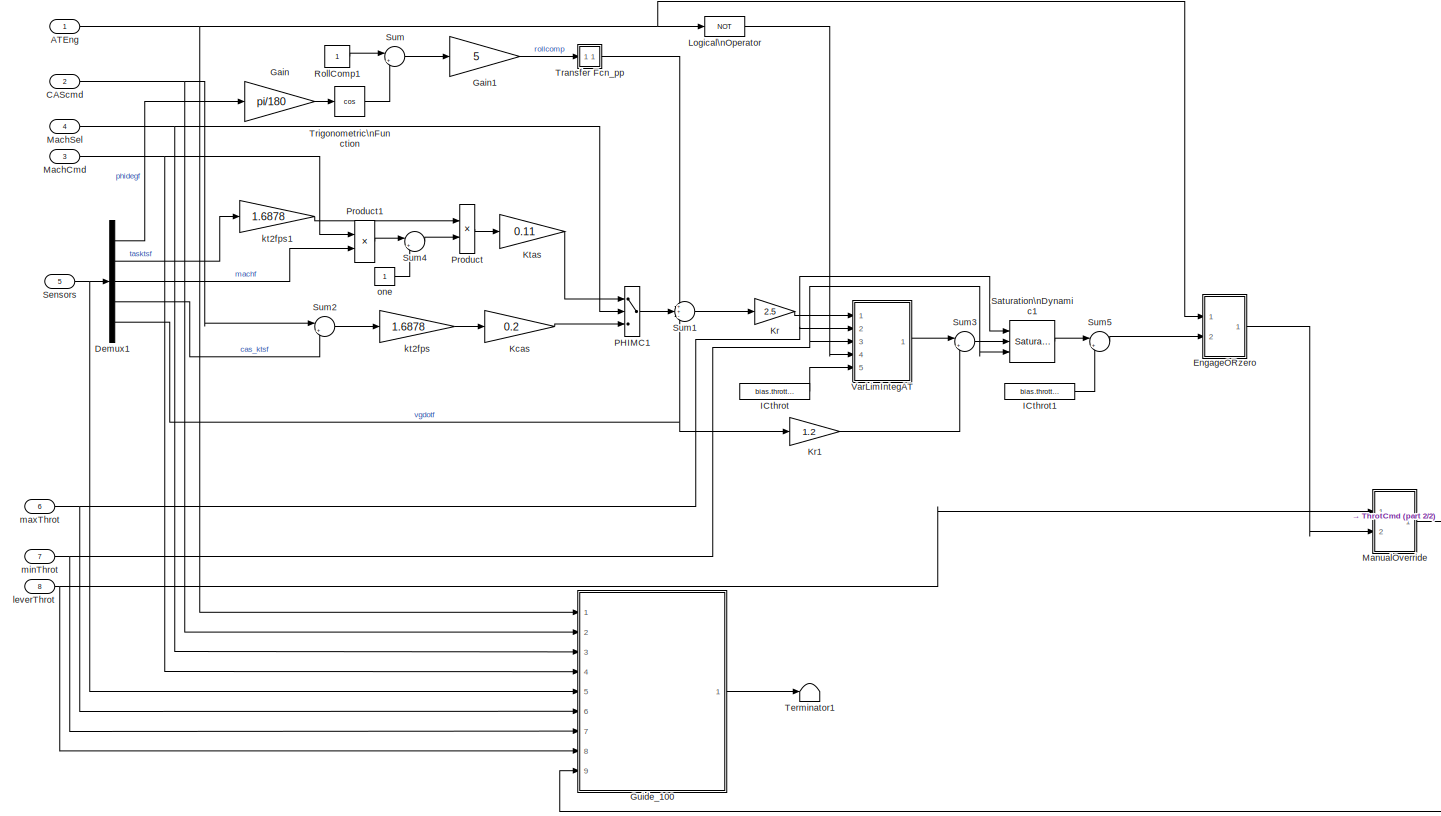
[diagram: root canvas - part 1/2, most of the canvas]
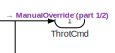
[diagram: root canvas - part 2/2, middle right region]
MODEL AutoThrottle_Guide_100
KIND model
BLOCK [Inport] ATEng
  IconDisplay = Port number
  SID = 1
BLOCK [Inport] CAScmd
  IconDisplay = Port number
  Port = 2
  SID = 2
BLOCK [Demux] Demux1
  DisplayOption = bar
  Outputs = 5
  Ports = [1, 5]
  SID = 9
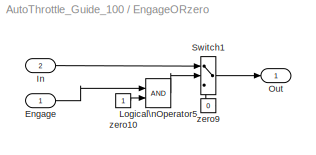
BLOCK [SubSystem] EngageORzero
  Ports = [2, 1]
  RequestExecContextInheritance = off
  SID = 10
  Variant = off
BLOCK [Inport] EngageORzero/Engage
  IconDisplay = Port number
  SID = 11
BLOCK [Inport] EngageORzero/In
  IconDisplay = Port number
  Port = 2
  SID = 12
BLOCK [Logic] EngageORzero/Logical\nOperator5
  AllPortsSameDT = off
  OutDataTypeStr = boolean
  Ports = [2, 1]
  SID = 13
BLOCK [Outport] EngageORzero/Out
  IconDisplay = Port number
  SID = 17
BLOCK [Switch] EngageORzero/Switch1
  InputSameDT = off
  SID = 14
  SaturateOnIntegerOverflow = off
  Threshold = 0.5
BLOCK [Constant] EngageORzero/zero10
  SID = 15
BLOCK [Constant] EngageORzero/zero9
  SID = 16
  Value = 0
BLOCK [Gain] Gain
  Gain = pi/180
  OutDataTypeStr = Inherit: Inherit via internal rule
  ParamDataTypeStr = Inherit: Inherit via internal rule
  SID = 18
  SaturateOnIntegerOverflow = off
BLOCK [Gain] Gain1
  Gain = 5
  OutDataTypeStr = Inherit: Inherit via internal rule
  ParamDataTypeStr = Inherit: Inherit via internal rule
  SID = 19
  SaturateOnIntegerOverflow = off
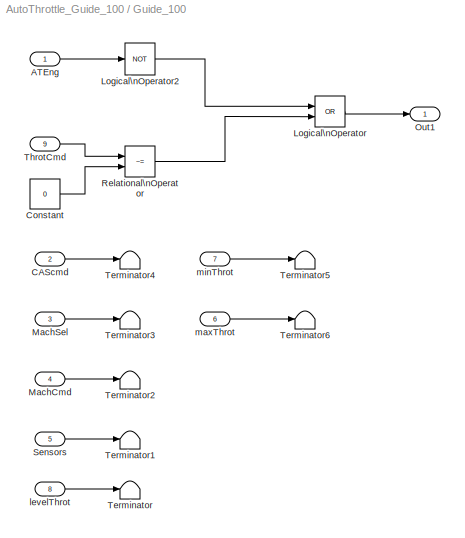
BLOCK [SubSystem] Guide_100
  Ports = [9, 1]
  RequestExecContextInheritance = off
  SID = 20
  TreatAsAtomicUnit = on
  Variant = off
BLOCK [Inport] Guide_100/ATEng
  IconDisplay = Port number
  SID = 21
BLOCK [Inport] Guide_100/CAScmd
  IconDisplay = Port number
  Port = 2
  SID = 22
BLOCK [Constant] Guide_100/Constant
  SID = 30
  Value = 0
BLOCK [Logic] Guide_100/Logical\nOperator
  AllPortsSameDT = off
  Operator = OR
  OutDataTypeStr = boolean
  Ports = [2, 1]
  SID = 31
BLOCK [Logic] Guide_100/Logical\nOperator2
  AllPortsSameDT = off
  Operator = NOT
  OutDataTypeStr = boolean
  Ports = [1, 1]
  SID = 32
BLOCK [Inport] Guide_100/MachCmd
  IconDisplay = Port number
  Port = 4
  SID = 24
BLOCK [Inport] Guide_100/MachSel
  IconDisplay = Port number
  Port = 3
  SID = 23
BLOCK [Outport] Guide_100/Out1
  IconDisplay = Port number
  SID = 41
BLOCK [RelationalOperator] Guide_100/Relational\nOperator
  InputSameDT = off
  Operator = ~=
  OutDataTypeStr = boolean
  Ports = [2, 1]
  SID = 33
BLOCK [Inport] Guide_100/Sensors
  IconDisplay = Port number
  Port = 5
  SID = 25
BLOCK [Terminator] Guide_100/Terminator
  SID = 34
BLOCK [Terminator] Guide_100/Terminator1
  SID = 35
BLOCK [Terminator] Guide_100/Terminator2
  SID = 36
BLOCK [Terminator] Guide_100/Terminator3
  SID = 37
BLOCK [Terminator] Guide_100/Terminator4
  SID = 38
BLOCK [Terminator] Guide_100/Terminator5
  SID = 39
BLOCK [Terminator] Guide_100/Terminator6
  SID = 40
BLOCK [Inport] Guide_100/ThrotCmd
  IconDisplay = Port number
  Port = 9
  SID = 29
BLOCK [Inport] Guide_100/levelThrot
  IconDisplay = Port number
  Port = 8
  SID = 28
BLOCK [Inport] Guide_100/maxThrot
  IconDisplay = Port number
  Port = 6
  SID = 26
BLOCK [Inport] Guide_100/minThrot
  IconDisplay = Port number
  Port = 7
  SID = 27
BLOCK [Constant] ICthrot
  SID = 42
  SampleTime = -1
  Value = bias.throttle
BLOCK [Constant] ICthrot1
  SID = 43
  SampleTime = -1
  Value = bias.throttle
BLOCK [Gain] Kcas
  Gain = 0.2
  OutDataTypeStr = Inherit: Inherit via internal rule
  ParamDataTypeStr = Inherit: Inherit via internal rule
  SID = 44
  SaturateOnIntegerOverflow = off
BLOCK [Gain] Kr
  Gain = 2.5
  OutDataTypeStr = Inherit: Inherit via internal rule
  ParamDataTypeStr = Inherit: Inherit via internal rule
  SID = 45
  SaturateOnIntegerOverflow = off
BLOCK [Gain] Kr1
  Gain = 1.2
  OutDataTypeStr = Inherit: Inherit via internal rule
  ParamDataTypeStr = Inherit: Inherit via internal rule
  SID = 46
  SaturateOnIntegerOverflow = off
BLOCK [Gain] Ktas
  Gain = 0.11
  OutDataTypeStr = Inherit: Inherit via internal rule
  ParamDataTypeStr = Inherit: Inherit via internal rule
  SID = 47
  SaturateOnIntegerOverflow = off
BLOCK [Logic] Logical\nOperator
  AllPortsSameDT = off
  Operator = NOT
  OutDataTypeStr = boolean
  Ports = [1, 1]
  SID = 48
BLOCK [Inport] MachCmd
  IconDisplay = Port number
  Port = 3
  SID = 3
BLOCK [Inport] MachSel
  IconDisplay = Port number
  Port = 4
  SID = 4
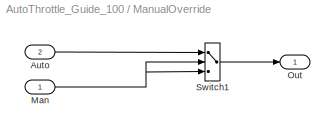
BLOCK [SubSystem] ManualOverride
  Ports = [2, 1]
  RequestExecContextInheritance = off
  SID = 49
  Variant = off
BLOCK [Inport] ManualOverride/Auto
  IconDisplay = Port number
  Port = 2
  SID = 51
BLOCK [Inport] ManualOverride/Man
  IconDisplay = Port number
  SID = 50
BLOCK [Outport] ManualOverride/Out
  IconDisplay = Port number
  SID = 53
BLOCK [Switch] ManualOverride/Switch1
  Criteria = u2 ~= 0
  InputSameDT = off
  SID = 52
  SaturateOnIntegerOverflow = off
  Threshold = 0.5
BLOCK [Switch] PHIMC1
  InputSameDT = off
  SID = 54
  Threshold = 0.5
BLOCK [Product] Product
  InputSameDT = off
  OutDataTypeStr = Inherit: Inherit via internal rule
  Ports = [2, 1]
  SID = 55
  SaturateOnIntegerOverflow = off
BLOCK [Product] Product1
  InputSameDT = off
  Inputs = */
  OutDataTypeStr = Inherit: Inherit via internal rule
  Ports = [2, 1]
  SID = 56
  SaturateOnIntegerOverflow = off
BLOCK [Constant] RollComp1
  SID = 57
  SampleTime = -1
BLOCK [Reference] Saturation\nDynamic1  REF=simulink/Discontinuities/Saturation\nDynamic
  DoSatur = off
  LockScale = off
  OutDataType = sfix(16)
  OutDataTypeStr = Inherit: Same as second input
  OutMax = []
  OutMin = []
  OutScaling = 2^-10
  OutputDataTypeScalingMode = Same as second input
  Ports = [3, 1]
  RndMeth = Floor
  SID = 58
  SourceBlock = simulink/Discontinuities/Saturation\nDynamic
  SourceType = Saturation Dynamic
BLOCK [Inport] Sensors
  IconDisplay = Port number
  Port = 5
  SID = 5
BLOCK [Sum] Sum
  IconShape = round
  InputSameDT = off
  Inputs = |+-
  OutDataTypeStr = Inherit: Inherit via internal rule
  Ports = [2, 1]
  SID = 59
  SaturateOnIntegerOverflow = off
BLOCK [Sum] Sum1
  IconShape = round
  InputSameDT = off
  Inputs = ++-
  OutDataTypeStr = Inherit: Inherit via internal rule
  Ports = [3, 1]
  SID = 60
  SaturateOnIntegerOverflow = off
BLOCK [Sum] Sum2
  IconShape = round
  InputSameDT = off
  Inputs = |+-
  OutDataTypeStr = Inherit: Inherit via internal rule
  Ports = [2, 1]
  SID = 61
  SaturateOnIntegerOverflow = off
BLOCK [Sum] Sum3
  IconShape = round
  InputSameDT = off
  Inputs = |+-
  OutDataTypeStr = Inherit: Inherit via internal rule
  Ports = [2, 1]
  SID = 62
  SaturateOnIntegerOverflow = off
BLOCK [Sum] Sum4
  IconShape = round
  InputSameDT = off
  Inputs = |+-
  OutDataTypeStr = Inherit: Inherit via internal rule
  Ports = [2, 1]
  SID = 63
  SaturateOnIntegerOverflow = off
BLOCK [Sum] Sum5
  IconShape = round
  InputSameDT = off
  Inputs = |+-
  OutDataTypeStr = Inherit: Inherit via internal rule
  Ports = [2, 1]
  SID = 64
  SaturateOnIntegerOverflow = off
BLOCK [Terminator] Terminator1
  SID = 65
BLOCK [Outport] ThrotCmd
  IconDisplay = Port number
  SID = 99
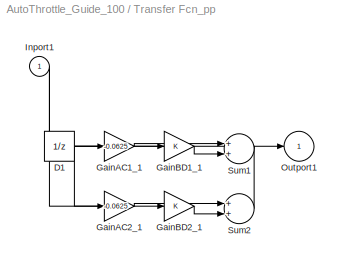
BLOCK [SubSystem] Transfer Fcn_pp
  Ports = [1, 1]
  RequestExecContextInheritance = off
  SID = 66
  TreatAsAtomicUnit = on
  Variant = off
BLOCK [UnitDelay] Transfer Fcn_pp/D1
  SID = 68
  SampleTime = -1
BLOCK [Gain] Transfer Fcn_pp/GainAC1_1
  Gain = -0.0625
  SID = 69
BLOCK [Gain] Transfer Fcn_pp/GainAC2_1
  Gain = -0.0625
  SID = 70
BLOCK [Gain] Transfer Fcn_pp/GainBD1_1
  SID = 71
BLOCK [Gain] Transfer Fcn_pp/GainBD2_1
  SID = 72
BLOCK [Inport] Transfer Fcn_pp/Inport1
  IconDisplay = Port number
  SID = 67
BLOCK [Outport] Transfer Fcn_pp/Outport1
  IconDisplay = Port number
  SID = 75
BLOCK [Sum] Transfer Fcn_pp/Sum1
  Ports = [2, 1]
  SID = 73
BLOCK [Sum] Transfer Fcn_pp/Sum2
  Ports = [2, 1]
  SID = 74
BLOCK [Trigonometry] Trigonometric\nFunction
  Operator = cos
  Ports = [1, 1]
  SID = 76
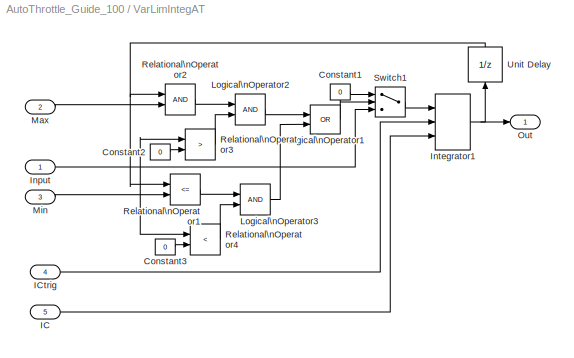
BLOCK [SubSystem] VarLimIntegAT
  Ports = [5, 1]
  RequestExecContextInheritance = off
  SID = 77
  TreatAsAtomicUnit = on
  Variant = off
BLOCK [Constant] VarLimIntegAT/Constant1
  SID = 83
  SampleTime = -1
  Value = 0
BLOCK [Constant] VarLimIntegAT/Constant2
  SID = 84
  SampleTime = -1
  Value = 0
BLOCK [Constant] VarLimIntegAT/Constant3
  SID = 85
  SampleTime = -1
  Value = 0
BLOCK [Inport] VarLimIntegAT/IC
  IconDisplay = Port number
  Port = 5
  SID = 82
BLOCK [Inport] VarLimIntegAT/ICtrig
  IconDisplay = Port number
  Port = 4
  SID = 81
BLOCK [Inport] VarLimIntegAT/Input
  IconDisplay = Port number
  SID = 78
BLOCK [DiscreteIntegrator] VarLimIntegAT/Integrator1
  ExternalReset = level
  ICPrevOutput = DiscIntNeverNeededParam
  ICPrevScaledInput = DiscIntNeverNeededParam
  InitialConditionSource = external
  Ports = [3, 1]
  SID = 86
  SampleTime = 1.0
BLOCK [Logic] VarLimIntegAT/Logical\nOperator1
  Operator = OR
  Ports = [2, 1]
  SID = 87
BLOCK [Logic] VarLimIntegAT/Logical\nOperator2
  Ports = [2, 1]
  SID = 88
BLOCK [Logic] VarLimIntegAT/Logical\nOperator3
  Ports = [2, 1]
  SID = 89
BLOCK [Inport] VarLimIntegAT/Max
  IconDisplay = Port number
  Port = 2
  SID = 79
BLOCK [Inport] VarLimIntegAT/Min
  IconDisplay = Port number
  Port = 3
  SID = 80
BLOCK [Outport] VarLimIntegAT/Out
  IconDisplay = Port number
  SID = 95
BLOCK [RelationalOperator] VarLimIntegAT/Relational\nOperator1
  Operator = <=
  Ports = [2, 1]
  SID = 90
BLOCK [RelationalOperator] VarLimIntegAT/Relational\nOperator2
  Ports = [2, 1]
  SID = 91
BLOCK [RelationalOperator] VarLimIntegAT/Relational\nOperator3
  Operator = >
  Ports = [2, 1]
  SID = 92
BLOCK [RelationalOperator] VarLimIntegAT/Relational\nOperator4
  Operator = <
  Ports = [2, 1]
  SID = 93
BLOCK [Switch] VarLimIntegAT/Switch1
  SID = 94
  Threshold = 0.1
BLOCK [UnitDelay] VarLimIntegAT/Unit Delay
  InputProcessing = Elements as channels (sample based)
  SID = 100
  SampleTime = -1
BLOCK [Gain] kt2fps
  Gain = 1.6878
  OutDataTypeStr = Inherit: Inherit via internal rule
  ParamDataTypeStr = Inherit: Inherit via internal rule
  SID = 96
  SaturateOnIntegerOverflow = off
BLOCK [Gain] kt2fps1
  Gain = 1.6878
  OutDataTypeStr = Inherit: Inherit via internal rule
  ParamDataTypeStr = Inherit: Inherit via internal rule
  SID = 97
  SaturateOnIntegerOverflow = off
BLOCK [Inport] leverThrot
  IconDisplay = Port number
  Port = 8
  SID = 8
BLOCK [Inport] maxThrot
  IconDisplay = Port number
  Port = 6
  SID = 6
BLOCK [Inport] minThrot
  IconDisplay = Port number
  Port = 7
  SID = 7
BLOCK [Constant] one
  SID = 98
  SampleTime = -1
NET ATEng:1 -> EngageORzero:1, Guide_100:1, Logical\nOperator:1
NET CAScmd:1 -> Guide_100:2, Sum2:1
LINE Demux1:1 -> Gain:1
LINE Demux1:2 -> kt2fps1:1
LINE Demux1:3 -> Product1:2
LINE Demux1:4 -> Sum2:2
NET Demux1:5 -> Kr1:1, Sum1:3
LINE EngageORzero/Engage:1 -> EngageORzero/Logical\nOperator5:1
LINE EngageORzero/In:1 -> EngageORzero/Switch1:1
LINE EngageORzero/Logical\nOperator5:1 -> EngageORzero/Switch1:2
LINE EngageORzero/Switch1:1 -> EngageORzero/Out:1
LINE EngageORzero/zero10:1 -> EngageORzero/Logical\nOperator5:2
LINE EngageORzero/zero9:1 -> EngageORzero/Switch1:3
LINE EngageORzero:1 -> ManualOverride:2
LINE Gain1:1 -> Transfer Fcn_pp:1
LINE Gain:1 -> Trigonometric\nFunction:1
LINE Guide_100/ATEng:1 -> Guide_100/Logical\nOperator2:1
LINE Guide_100/CAScmd:1 -> Guide_100/Terminator4:1
LINE Guide_100/Constant:1 -> Guide_100/Relational\nOperator:2
LINE Guide_100/Logical\nOperator2:1 -> Guide_100/Logical\nOperator:1
LINE Guide_100/Logical\nOperator:1 -> Guide_100/Out1:1
LINE Guide_100/MachCmd:1 -> Guide_100/Terminator2:1
LINE Guide_100/MachSel:1 -> Guide_100/Terminator3:1
LINE Guide_100/Relational\nOperator:1 -> Guide_100/Logical\nOperator:2
LINE Guide_100/Sensors:1 -> Guide_100/Terminator1:1
LINE Guide_100/ThrotCmd:1 -> Guide_100/Relational\nOperator:1
LINE Guide_100/levelThrot:1 -> Guide_100/Terminator:1
LINE Guide_100/maxThrot:1 -> Guide_100/Terminator6:1
LINE Guide_100/minThrot:1 -> Guide_100/Terminator5:1
LINE Guide_100:1 -> Terminator1:1
LINE ICthrot1:1 -> Sum5:2
LINE ICthrot:1 -> VarLimIntegAT:5
LINE Kcas:1 -> PHIMC1:3
LINE Kr1:1 -> Sum3:2
LINE Kr:1 -> VarLimIntegAT:1
LINE Ktas:1 -> PHIMC1:1
LINE Logical\nOperator:1 -> VarLimIntegAT:4
NET MachCmd:1 -> Guide_100:4, Product1:1
NET MachSel:1 -> Guide_100:3, PHIMC1:2
LINE ManualOverride/Auto:1 -> ManualOverride/Switch1:1
NET ManualOverride/Man:1 -> ManualOverride/Switch1:2, ManualOverride/Switch1:3
LINE ManualOverride/Switch1:1 -> ManualOverride/Out:1
NET ManualOverride:1 -> Guide_100:9, ThrotCmd:1
LINE PHIMC1:1 -> Sum1:2
LINE Product1:1 -> Sum4:1
LINE Product:1 -> Ktas:1
LINE RollComp1:1 -> Sum:1
LINE Saturation\nDynamic1:1 -> Sum5:1
NET Sensors:1 -> Demux1:1, Guide_100:5
LINE Sum1:1 -> Kr:1
LINE Sum2:1 -> kt2fps:1
LINE Sum3:1 -> Saturation\nDynamic1:2
LINE Sum4:1 -> Product:2
LINE Sum5:1 -> EngageORzero:2
LINE Sum:1 -> Gain1:1
NET Transfer Fcn_pp/D1:1 -> Transfer Fcn_pp/GainAC1_1:1, Transfer Fcn_pp/GainAC2_1:1
LINE Transfer Fcn_pp/GainAC1_1:1 -> Transfer Fcn_pp/Sum1:1
LINE Transfer Fcn_pp/GainAC2_1:1 -> Transfer Fcn_pp/Sum2:1
LINE Transfer Fcn_pp/GainBD1_1:1 -> Transfer Fcn_pp/Sum1:2
LINE Transfer Fcn_pp/GainBD2_1:1 -> Transfer Fcn_pp/Sum2:2
NET Transfer Fcn_pp/Inport1:1 -> Transfer Fcn_pp/GainBD1_1:1, Transfer Fcn_pp/GainBD2_1:1
LINE Transfer Fcn_pp/Sum1:1 -> Transfer Fcn_pp/D1:1
LINE Transfer Fcn_pp/Sum2:1 -> Transfer Fcn_pp/Outport1:1
LINE Transfer Fcn_pp:1 -> Sum1:1
LINE Trigonometric\nFunction:1 -> Sum:2
LINE VarLimIntegAT/Constant1:1 -> VarLimIntegAT/Switch1:1
LINE VarLimIntegAT/Constant2:1 -> VarLimIntegAT/Relational\nOperator3:2
LINE VarLimIntegAT/Constant3:1 -> VarLimIntegAT/Relational\nOperator4:2
LINE VarLimIntegAT/IC:1 -> VarLimIntegAT/Integrator1:3
LINE VarLimIntegAT/ICtrig:1 -> VarLimIntegAT/Integrator1:2
NET VarLimIntegAT/Input:1 -> VarLimIntegAT/Relational\nOperator3:1, VarLimIntegAT/Relational\nOperator4:1, VarLimIntegAT/Switch1:3
NET VarLimIntegAT/Integrator1:1 -> VarLimIntegAT/Out:1, VarLimIntegAT/Unit Delay:1
LINE VarLimIntegAT/Logical\nOperator1:1 -> VarLimIntegAT/Switch1:2
LINE VarLimIntegAT/Logical\nOperator2:1 -> VarLimIntegAT/Logical\nOperator1:1
LINE VarLimIntegAT/Logical\nOperator3:1 -> VarLimIntegAT/Logical\nOperator1:2
LINE VarLimIntegAT/Max:1 -> VarLimIntegAT/Relational\nOperator2:2
LINE VarLimIntegAT/Min:1 -> VarLimIntegAT/Relational\nOperator1:2
LINE VarLimIntegAT/Relational\nOperator1:1 -> VarLimIntegAT/Logical\nOperator3:1
LINE VarLimIntegAT/Relational\nOperator2:1 -> VarLimIntegAT/Logical\nOperator2:1
LINE VarLimIntegAT/Relational\nOperator3:1 -> VarLimIntegAT/Logical\nOperator2:2
LINE VarLimIntegAT/Relational\nOperator4:1 -> VarLimIntegAT/Logical\nOperator3:2
LINE VarLimIntegAT/Switch1:1 -> VarLimIntegAT/Integrator1:1
NET VarLimIntegAT/Unit Delay:1 -> VarLimIntegAT/Relational\nOperator1:1, VarLimIntegAT/Relational\nOperator2:1
LINE VarLimIntegAT:1 -> Sum3:1
LINE kt2fps1:1 -> Product:1
LINE kt2fps:1 -> Kcas:1
NET leverThrot:1 -> Guide_100:8, ManualOverride:1
NET maxThrot:1 -> Guide_100:6, Saturation\nDynamic1:1, VarLimIntegAT:2
NET minThrot:1 -> Guide_100:7, Saturation\nDynamic1:3, VarLimIntegAT:3
LINE one:1 -> Sum4:2
note: NET lines group one-source signal fan-out (src -> all destinations, sorted); 1:1 wires keep LINE
